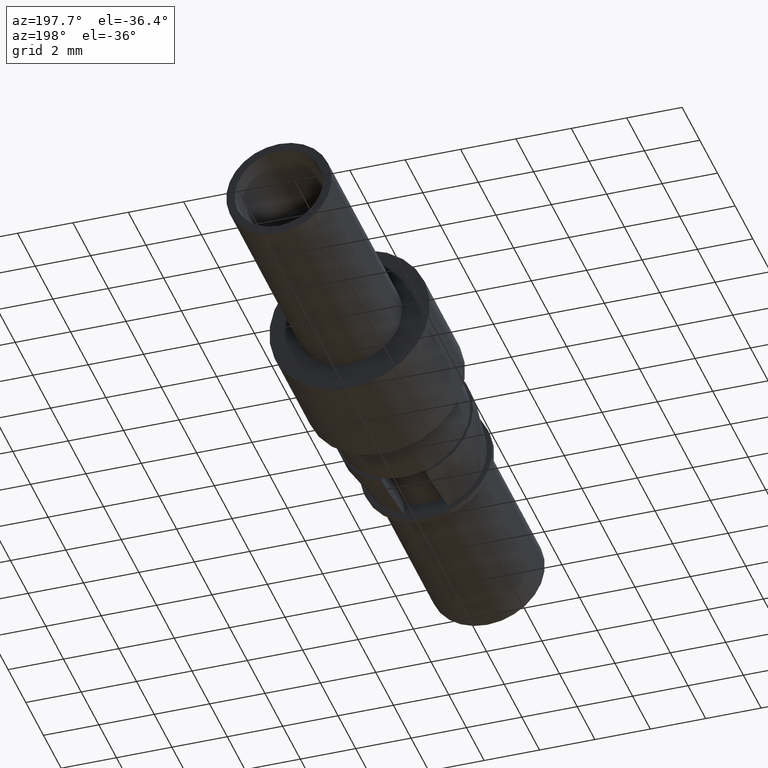
[diagram: clean part render]
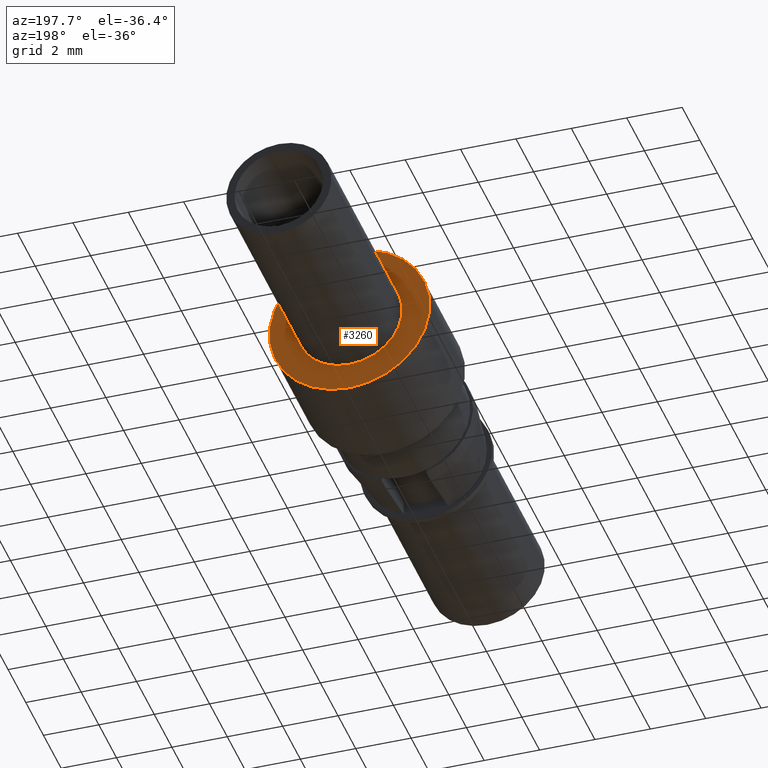
[diagram: same view with one face highlighted and labeled with its STEP entity id]
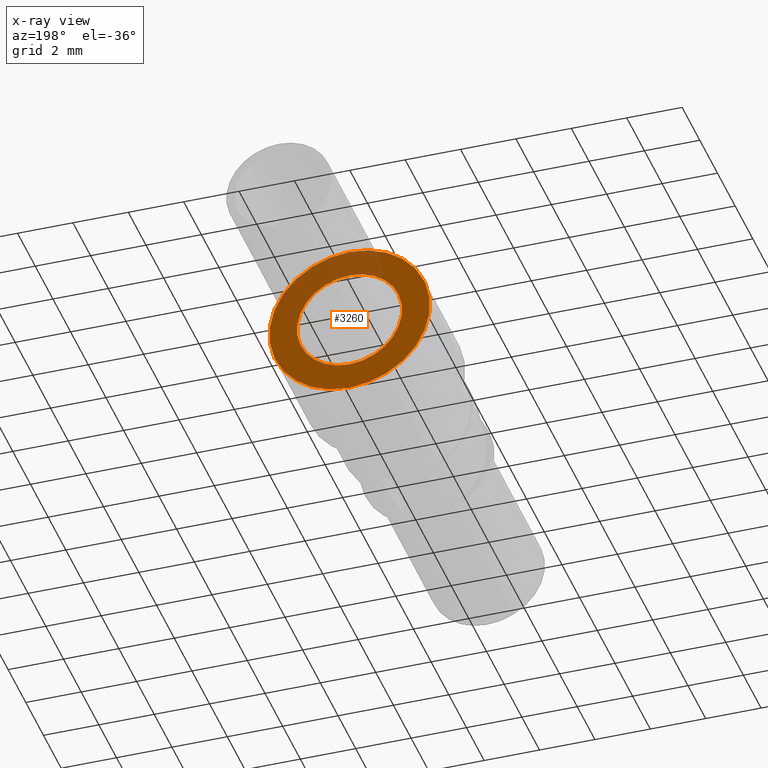
[diagram: x-ray of the same camera — body ghosted, the highlighted face saturated]
A machine part, auxiliary view. The second image highlights one B-rep face of the part: STEP entity #3260.
The next image is the same camera in x-ray: the body ghosted, the highlighted face saturated — about 28% of this face is hidden behind the body in this view.
In plain terms, the highlighted planar face has unit normal (-0, -1, 0).
Its self-contained STEP definition (entity closure, byte-faithful):
#590=CARTESIAN_POINT('',(66.6468230000002,79.2795149999963,
-5.24999999999949));
#600=VERTEX_POINT('',#590);
#650=CARTESIAN_POINT('',(66.6468230000002,77.3795149999963,
-5.24999999999949));
#660=DIRECTION('',(0.,0.,1.));
#670=DIRECTION('',(0.,1.,0.));
#680=AXIS2_PLACEMENT_3D('',#650,#660,#670);
#690=CIRCLE('',#680,1.9);
#700=CARTESIAN_POINT('',(66.6468230000002,75.4795149999963,
-5.24999999999949));
#710=VERTEX_POINT('',#700);
#720=EDGE_CURVE('',#710,#600,#690,.T.);
#3010=CARTESIAN_POINT('',(66.6468230000002,79.2545149999963,
-5.24999999999949));
#3020=DIRECTION('',(-0.,-0.,-1.));
#3030=DIRECTION('',(0.,-1.,0.));
#3040=AXIS2_PLACEMENT_3D('',#3010,#3020,#3030);
#3050=PLANE('',#3040);
#3060=EDGE_CURVE('',#600,#710,#690,.T.);
#3070=ORIENTED_EDGE('',*,*,#3060,.F.);
#3080=ORIENTED_EDGE('',*,*,#720,.F.);
#3090=EDGE_LOOP('',(#3080,#3070));
#3100=FACE_BOUND('',#3090,.T.);
#3110=CARTESIAN_POINT('',(66.6468230000002,77.3795149999963,
-5.24999999999949));
#3120=DIRECTION('',(0.,0.,-1.));
#3130=DIRECTION('',(0.,-1.,0.));
#3140=AXIS2_PLACEMENT_3D('',#3110,#3120,#3130);
#3150=CIRCLE('',#3140,2.9);
#3160=CARTESIAN_POINT('',(66.6468230000002,74.4795149999963,
-5.24999999999949));
#3170=VERTEX_POINT('',#3160);
#3180=CARTESIAN_POINT('',(66.6468230000002,80.2795149999963,
-5.24999999999949));
#3190=VERTEX_POINT('',#3180);
#3200=EDGE_CURVE('',#3170,#3190,#3150,.T.);
#3210=ORIENTED_EDGE('',*,*,#3200,.F.);
#3220=EDGE_CURVE('',#3190,#3170,#3150,.T.);
#3230=ORIENTED_EDGE('',*,*,#3220,.F.);
#3240=EDGE_LOOP('',(#3230,#3210));
#3250=FACE_OUTER_BOUND('',#3240,.T.);
#3260=ADVANCED_FACE('',(#3100,#3250),#3050,.F.);